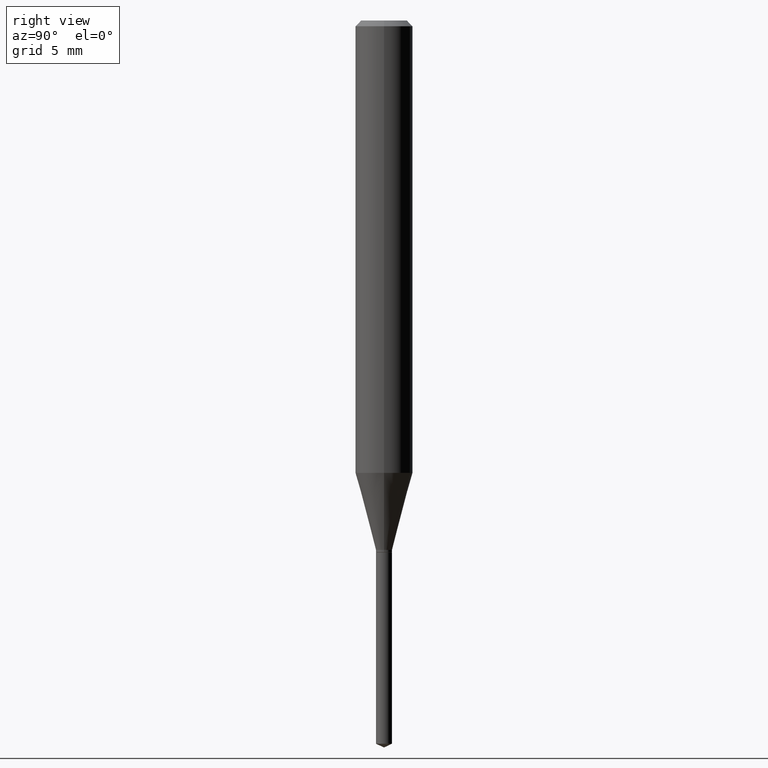
[diagram: clean part render]
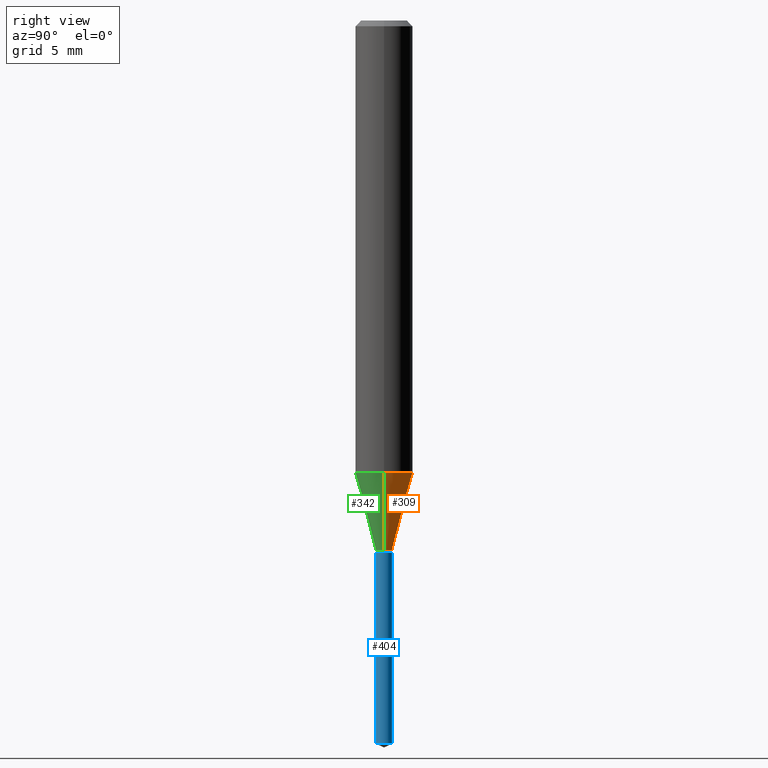
[diagram: same view with three faces highlighted in distinct colors, each labeled with its STEP entity id]
A machine part, right view with three faces highlighted in distinct colors.
Their STEP definitions:

[orange] entity #309 — the highlighted conical surface has half-angle 15 deg.
#16 = VERTEX_POINT ( 'NONE', #337 ) ;
#17 = EDGE_CURVE ( 'NONE', #381, #122, #156, .T. ) ;
#49 = EDGE_CURVE ( 'NONE', #264, #16, #367, .T. ) ;
#56 = CARTESIAN_POINT ( 'NONE',  ( 2.664338264338706022E-29, -3.803968918669606949E-15, -1.089499999999999913 ) ) ;
#62 = CARTESIAN_POINT ( 'NONE',  ( 0.01654999999999999874, -3.919536950985314429E-15, -1.089499999999999913 ) ) ;
#74 = CARTESIAN_POINT ( 'NONE',  ( -0.01654999999999999874, -3.686374095901309909E-15, -1.089499999999999913 ) ) ;
#83 = EDGE_CURVE ( 'NONE', #381, #264, #435, .T. ) ;
#94 = ORIENTED_EDGE ( 'NONE', *, *, #121, .F. ) ;
#121 = EDGE_CURVE ( 'NONE', #122, #16, #417, .T. ) ;
#122 = VERTEX_POINT ( 'NONE', #371 ) ;
#140 = DIRECTION ( 'NONE',  ( -2.445468806185136597E-29, 3.491481338843145583E-15, 1.000000000000000000 ) ) ;
#148 = DIRECTION ( 'NONE',  ( -0.2588190451025213501, 5.211531920934551042E-15, 0.9659258262890682012 ) ) ;
#156 = LINE ( 'NONE', #255, #339 ) ;
#159 = EDGE_LOOP ( 'NONE', ( #196, #347, #94, #210 ) ) ;
#183 = DIRECTION ( 'NONE',  ( 1.000000000000000000, -6.982962677686267499E-15, 0.000000000000000000 ) ) ;
#189 = CARTESIAN_POINT ( 'NONE',  ( 2.664338264338706022E-29, -3.803968918669606949E-15, -1.089499999999999913 ) ) ;
#193 = VECTOR ( 'NONE', #148, 39.37007874015747433 ) ;
#196 = ORIENTED_EDGE ( 'NONE', *, *, #83, .T. ) ;
#199 = DIRECTION ( 'NONE',  ( 1.000000000000000000, -6.982962677686266711E-15, 0.000000000000000000 ) ) ;
#207 = AXIS2_PLACEMENT_3D ( 'NONE', #189, #378, #338 ) ;
#210 = ORIENTED_EDGE ( 'NONE', *, *, #17, .F. ) ;
#255 = CARTESIAN_POINT ( 'NONE',  ( 0.01654999999999999874, -3.919536950985314429E-15, -1.089499999999999913 ) ) ;
#264 = VERTEX_POINT ( 'NONE', #313 ) ;
#289 = DIRECTION ( 'NONE',  ( 0.2588190451025213501, 1.565188264969621968E-15, 0.9659258262890682012 ) ) ;
#301 = AXIS2_PLACEMENT_3D ( 'NONE', #56, #140, #199 ) ;
#309 = ADVANCED_FACE ( 'NONE', ( #399 ), #447, .T. ) ;
#313 = CARTESIAN_POINT ( 'NONE',  ( -0.01654999999999999874, -3.694229928913707069E-15, -1.089499999999999913 ) ) ;
#337 = CARTESIAN_POINT ( 'NONE',  ( -0.05905000000000011628, -2.830602038818014515E-15, -0.9308878406783226422 ) ) ;
#338 = DIRECTION ( 'NONE',  ( 1.000000000000000000, -6.982962677686266711E-15, 0.000000000000000000 ) ) ;
#339 = VECTOR ( 'NONE', #289, 39.37007874015747433 ) ;
#347 = ORIENTED_EDGE ( 'NONE', *, *, #49, .T. ) ;
#367 = LINE ( 'NONE', #74, #193 ) ;
#371 = CARTESIAN_POINT ( 'NONE',  ( 0.05905000000000011628, -3.662521470401729717E-15, -0.9308878406783226422 ) ) ;
#378 = DIRECTION ( 'NONE',  ( -2.445468806185136597E-29, 3.491481338843145583E-15, 1.000000000000000000 ) ) ;
#381 = VERTEX_POINT ( 'NONE', #62 ) ;
#399 = FACE_OUTER_BOUND ( 'NONE', #159, .T. ) ;
#400 = AXIS2_PLACEMENT_3D ( 'NONE', #460, #456, #183 ) ;
#417 = CIRCLE ( 'NONE', #400, 0.05905000000000010935 ) ;
#435 = CIRCLE ( 'NONE', #207, 0.01654999999999999874 ) ;
#447 = CONICAL_SURFACE ( 'NONE', #301, 0.01654999999999999874, 0.2617993877991500740 ) ;
#456 = DIRECTION ( 'NONE',  ( -2.445468806185136597E-29, 3.491481338843145583E-15, 1.000000000000000000 ) ) ;
#460 = CARTESIAN_POINT ( 'NONE',  ( 2.276457176435877230E-29, -3.250177524284354797E-15, -0.9308878406783226422 ) ) ;

[blue] entity #404 — the highlighted cylindrical surface (edge-blend (fillet) strip) has radius 0.4204 mm, axis along (-0, 0, 1).
#10 = VERTEX_POINT ( 'NONE', #218 ) ;
#35 = AXIS2_PLACEMENT_3D ( 'NONE', #272, #475, #481 ) ;
#39 = ORIENTED_EDGE ( 'NONE', *, *, #353, .T. ) ;
#57 = VERTEX_POINT ( 'NONE', #262 ) ;
#107 = AXIS2_PLACEMENT_3D ( 'NONE', #487, #177, #250 ) ;
#108 = CARTESIAN_POINT ( 'NONE',  ( 1.175948227683330073E-16, 0.01654999999999617541, -1.094499999999999806 ) ) ;
#129 = VERTEX_POINT ( 'NONE', #108 ) ;
#143 = VECTOR ( 'NONE', #234, 39.37007874015748143 ) ;
#174 = FACE_OUTER_BOUND ( 'NONE', #405, .T. ) ;
#177 = DIRECTION ( 'NONE',  ( -2.445460715294871217E-29, 3.491492925458510144E-15, 1.000000000000000000 ) ) ;
#181 = DIRECTION ( 'NONE',  ( -6.982962677686266711E-15, -1.000000000000000000, 0.000000000000000000 ) ) ;
#190 = EDGE_CURVE ( 'NONE', #57, #129, #423, .T. ) ;
#218 = CARTESIAN_POINT ( 'NONE',  ( -1.155680323156712916E-16, -0.01655000000000519597, -1.488382608257534656 ) ) ;
#234 = DIRECTION ( 'NONE',  ( -2.445460715294871217E-29, 3.491492925458510144E-15, 1.000000000000000000 ) ) ;
#247 = AXIS2_PLACEMENT_3D ( 'NONE', #489, #365, #181 ) ;
#250 = DIRECTION ( 'NONE',  ( -6.982962677686266711E-15, -1.000000000000000000, 0.000000000000000000 ) ) ;
#251 = DIRECTION ( 'NONE',  ( -2.445460715294871217E-29, 3.491492925458510144E-15, 1.000000000000000000 ) ) ;
#262 = CARTESIAN_POINT ( 'NONE',  ( -1.155680323156809305E-16, -0.01655000000000381860, -1.094499999999999806 ) ) ;
#272 = CARTESIAN_POINT ( 'NONE',  ( 2.676565608369631794E-29, -3.821426325363822773E-15, -1.094499999999999806 ) ) ;
#294 = EDGE_CURVE ( 'NONE', #10, #421, #457, .T. ) ;
#305 = ORIENTED_EDGE ( 'NONE', *, *, #458, .F. ) ;
#311 = CYLINDRICAL_SURFACE ( 'NONE', #35, 0.01654999999999999874 ) ;
#352 = LINE ( 'NONE', #439, #143 ) ;
#353 = EDGE_CURVE ( 'NONE', #421, #129, #352, .T. ) ;
#364 = CARTESIAN_POINT ( 'NONE',  ( -1.155680323156809305E-16, -0.01655000000000381860, -1.094499999999999806 ) ) ;
#365 = DIRECTION ( 'NONE',  ( -2.445460715294871217E-29, 3.491492925458510144E-15, 1.000000000000000000 ) ) ;
#376 = ORIENTED_EDGE ( 'NONE', *, *, #294, .T. ) ;
#392 = ORIENTED_EDGE ( 'NONE', *, *, #190, .F. ) ;
#404 = ADVANCED_FACE ( 'NONE', ( #174 ), #311, .T. ) ;
#405 = EDGE_LOOP ( 'NONE', ( #376, #39, #392, #305 ) ) ;
#415 = VECTOR ( 'NONE', #251, 39.37007874015748143 ) ;
#421 = VERTEX_POINT ( 'NONE', #485 ) ;
#423 = CIRCLE ( 'NONE', #107, 0.01654999999999999874 ) ;
#427 = LINE ( 'NONE', #364, #415 ) ;
#439 = CARTESIAN_POINT ( 'NONE',  ( 1.175948227683233191E-16, 0.01654999999999617541, -1.094499999999999806 ) ) ;
#457 = CIRCLE ( 'NONE', #247, 0.01654999999999999874 ) ;
#458 = EDGE_CURVE ( 'NONE', #10, #57, #427, .T. ) ;
#475 = DIRECTION ( 'NONE',  ( -2.445460715294871217E-29, 3.491492925458510144E-15, 1.000000000000000000 ) ) ;
#481 = DIRECTION ( 'NONE',  ( -6.982962677686266711E-15, -1.000000000000000000, 0.000000000000000000 ) ) ;
#485 = CARTESIAN_POINT ( 'NONE',  ( 1.175948227683329334E-16, 0.01654999999999479804, -1.488382608257534656 ) ) ;
#487 = CARTESIAN_POINT ( 'NONE',  ( 2.676565608369631794E-29, -3.821426325363822773E-15, -1.094499999999999806 ) ) ;
#489 = CARTESIAN_POINT ( 'NONE',  ( 3.639790053301312360E-29, -5.196664665556151935E-15, -1.488382608257534656 ) ) ;

[green] entity #342 — the highlighted conical surface has half-angle 15 deg.
#16 = VERTEX_POINT ( 'NONE', #337 ) ;
#17 = EDGE_CURVE ( 'NONE', #381, #122, #156, .T. ) ;
#38 = AXIS2_PLACEMENT_3D ( 'NONE', #431, #442, #167 ) ;
#48 = AXIS2_PLACEMENT_3D ( 'NONE', #434, #473, #238 ) ;
#49 = EDGE_CURVE ( 'NONE', #264, #16, #367, .T. ) ;
#62 = CARTESIAN_POINT ( 'NONE',  ( 0.01654999999999999874, -3.919536950985314429E-15, -1.089499999999999913 ) ) ;
#74 = CARTESIAN_POINT ( 'NONE',  ( -0.01654999999999999874, -3.686374095901309909E-15, -1.089499999999999913 ) ) ;
#85 = CIRCLE ( 'NONE', #48, 0.05905000000000010935 ) ;
#116 = AXIS2_PLACEMENT_3D ( 'NONE', #319, #349, #444 ) ;
#122 = VERTEX_POINT ( 'NONE', #371 ) ;
#148 = DIRECTION ( 'NONE',  ( -0.2588190451025213501, 5.211531920934551042E-15, 0.9659258262890682012 ) ) ;
#156 = LINE ( 'NONE', #255, #339 ) ;
#167 = DIRECTION ( 'NONE',  ( 1.000000000000000000, -6.982962677686266711E-15, 0.000000000000000000 ) ) ;
#193 = VECTOR ( 'NONE', #148, 39.37007874015747433 ) ;
#201 = FACE_OUTER_BOUND ( 'NONE', #315, .T. ) ;
#229 = ORIENTED_EDGE ( 'NONE', *, *, #368, .T. ) ;
#237 = CIRCLE ( 'NONE', #38, 0.01654999999999999874 ) ;
#238 = DIRECTION ( 'NONE',  ( 1.000000000000000000, -6.982962677686267499E-15, 0.000000000000000000 ) ) ;
#255 = CARTESIAN_POINT ( 'NONE',  ( 0.01654999999999999874, -3.919536950985314429E-15, -1.089499999999999913 ) ) ;
#264 = VERTEX_POINT ( 'NONE', #313 ) ;
#289 = DIRECTION ( 'NONE',  ( 0.2588190451025213501, 1.565188264969621968E-15, 0.9659258262890682012 ) ) ;
#306 = ORIENTED_EDGE ( 'NONE', *, *, #409, .F. ) ;
#313 = CARTESIAN_POINT ( 'NONE',  ( -0.01654999999999999874, -3.694229928913707069E-15, -1.089499999999999913 ) ) ;
#315 = EDGE_LOOP ( 'NONE', ( #472, #229, #476, #306 ) ) ;
#319 = CARTESIAN_POINT ( 'NONE',  ( 2.664338264338706022E-29, -3.803968918669606949E-15, -1.089499999999999913 ) ) ;
#325 = CONICAL_SURFACE ( 'NONE', #116, 0.01654999999999999874, 0.2617993877991500740 ) ;
#337 = CARTESIAN_POINT ( 'NONE',  ( -0.05905000000000011628, -2.830602038818014515E-15, -0.9308878406783226422 ) ) ;
#339 = VECTOR ( 'NONE', #289, 39.37007874015747433 ) ;
#342 = ADVANCED_FACE ( 'NONE', ( #201 ), #325, .T. ) ;
#349 = DIRECTION ( 'NONE',  ( -2.445468806185136597E-29, 3.491481338843145583E-15, 1.000000000000000000 ) ) ;
#367 = LINE ( 'NONE', #74, #193 ) ;
#368 = EDGE_CURVE ( 'NONE', #264, #381, #237, .T. ) ;
#371 = CARTESIAN_POINT ( 'NONE',  ( 0.05905000000000011628, -3.662521470401729717E-15, -0.9308878406783226422 ) ) ;
#381 = VERTEX_POINT ( 'NONE', #62 ) ;
#409 = EDGE_CURVE ( 'NONE', #16, #122, #85, .T. ) ;
#431 = CARTESIAN_POINT ( 'NONE',  ( 2.664338264338706022E-29, -3.803968918669606949E-15, -1.089499999999999913 ) ) ;
#434 = CARTESIAN_POINT ( 'NONE',  ( 2.276457176435877230E-29, -3.250177524284354797E-15, -0.9308878406783226422 ) ) ;
#442 = DIRECTION ( 'NONE',  ( -2.445468806185136597E-29, 3.491481338843145583E-15, 1.000000000000000000 ) ) ;
#444 = DIRECTION ( 'NONE',  ( 1.000000000000000000, -6.982962677686266711E-15, 0.000000000000000000 ) ) ;
#472 = ORIENTED_EDGE ( 'NONE', *, *, #49, .F. ) ;
#473 = DIRECTION ( 'NONE',  ( -2.445468806185136597E-29, 3.491481338843145583E-15, 1.000000000000000000 ) ) ;
#476 = ORIENTED_EDGE ( 'NONE', *, *, #17, .T. ) ;